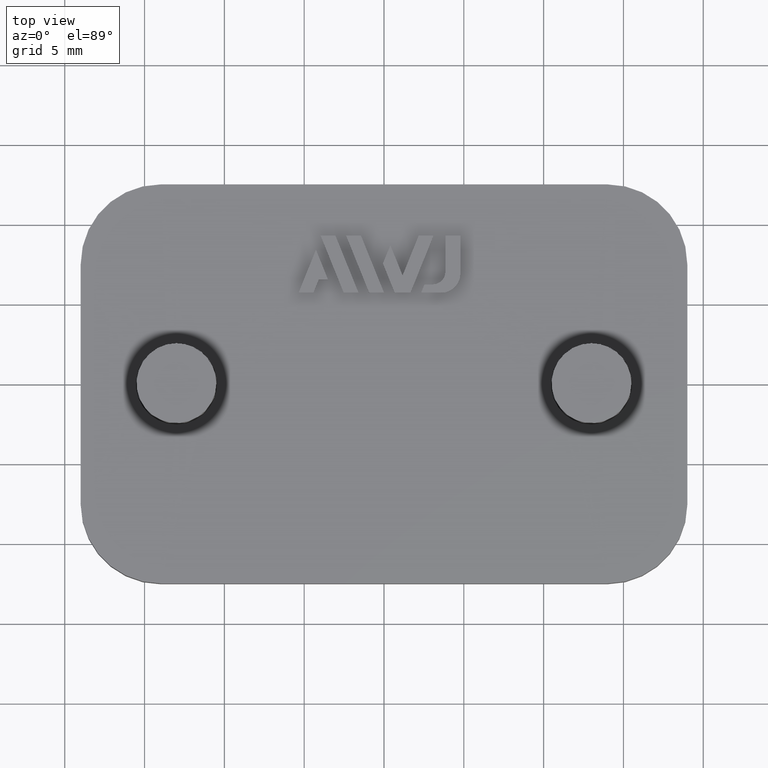
[diagram: clean part render]
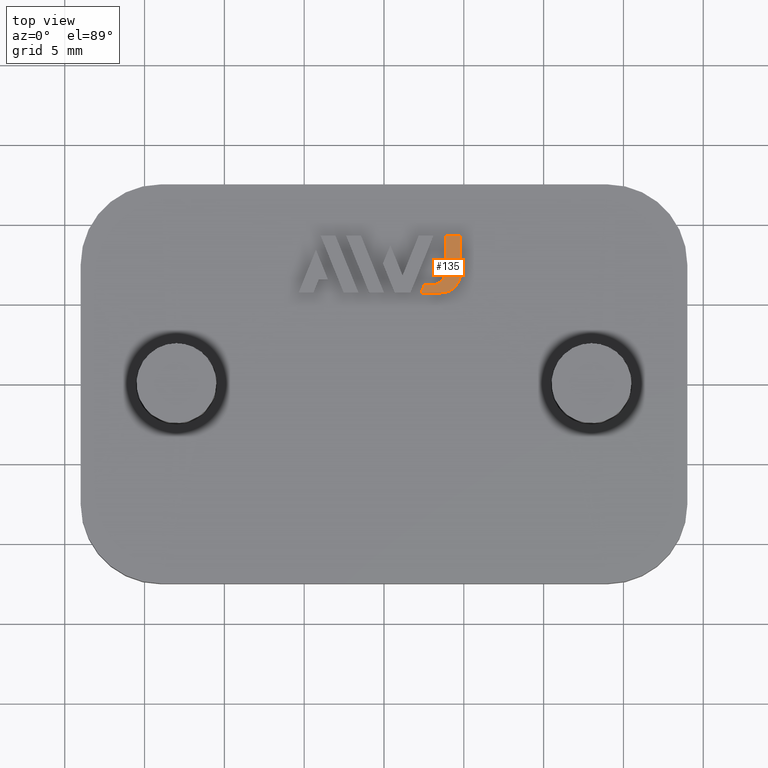
[diagram: same view with one face highlighted and labeled with its STEP entity id]
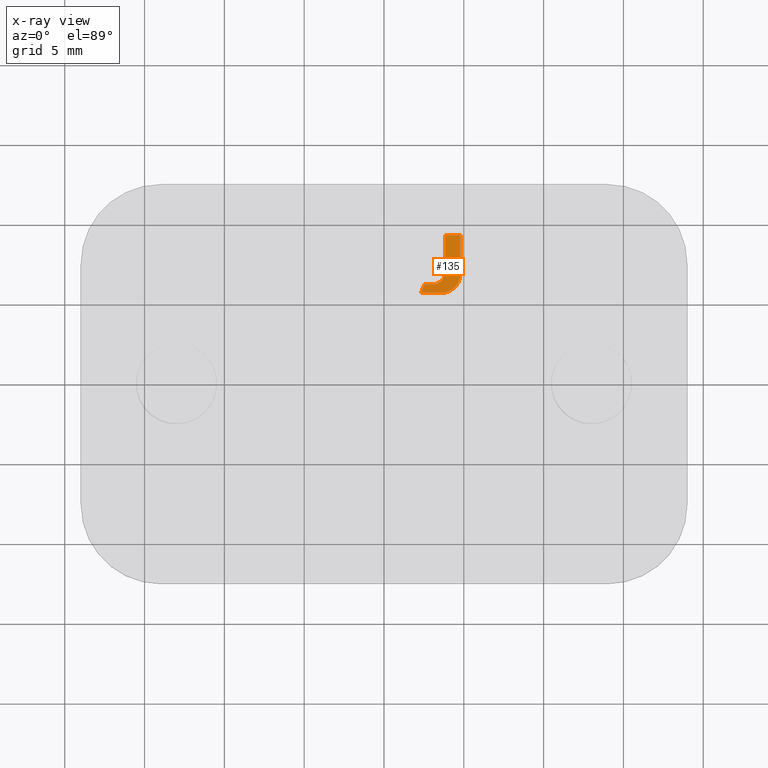
[diagram: x-ray of the same camera — body ghosted, the highlighted face saturated]
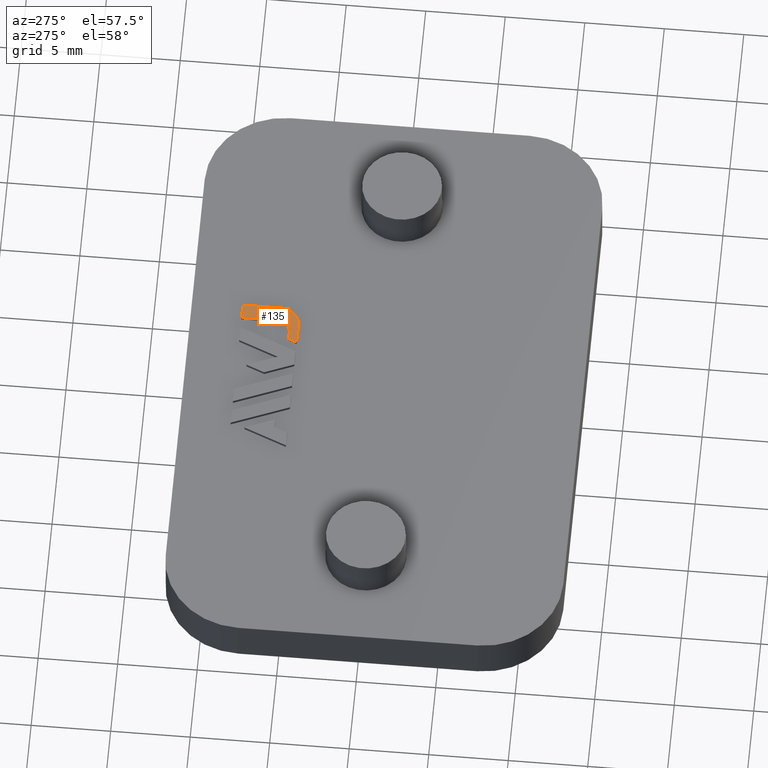
[diagram: same view with one face highlighted and labeled with its STEP entity id]
A machine part, top view. The second image highlights one B-rep face of the part: STEP entity #135.
The next image is the same camera in x-ray: the body ghosted, the highlighted face saturated — about 0% of this face is hidden behind the body in this view.
A second angle (auxiliary view) of the same face is appended — the face is thin or edge-on in the first view.
In plain terms, the highlighted planar face has unit normal (0, 0, 1).
Its self-contained STEP definition (entity closure, byte-faithful):
#135 = ADVANCED_FACE( '', ( #268 ), #269, .T. );
#268 = FACE_OUTER_BOUND( '', #401, .T. );
#269 = PLANE( '', #402 );
#401 = EDGE_LOOP( '', ( #871, #872, #873, #874, #875, #876, #877, #878 ) );
#402 = AXIS2_PLACEMENT_3D( '', #879, #880, #881 );
#871 = ORIENTED_EDGE( '', *, *, #1019, .T. );
#872 = ORIENTED_EDGE( '', *, *, #924, .T. );
#873 = ORIENTED_EDGE( '', *, *, #927, .T. );
#874 = ORIENTED_EDGE( '', *, *, #1022, .T. );
#875 = ORIENTED_EDGE( '', *, *, #1024, .T. );
#876 = ORIENTED_EDGE( '', *, *, #1026, .T. );
#877 = ORIENTED_EDGE( '', *, *, #1028, .T. );
#878 = ORIENTED_EDGE( '', *, *, #1029, .T. );
#879 = CARTESIAN_POINT( '', ( 3.58288028181883, 6.90000000000000, 3.19999999999999 ) );
#880 = DIRECTION( '', ( 0.000000000000000, 6.12303176911189E-017, 1.00000000000000 ) );
#881 = DIRECTION( '', ( 0.000000000000000, -1.00000000000000, 6.12303176911189E-017 ) );
#924 = EDGE_CURVE( '', #1113, #1111, #1114, .T. );
#927 = EDGE_CURVE( '', #1111, #1116, #1118, .T. );
#1019 = EDGE_CURVE( '', #1262, #1113, #1263, .T. );
#1022 = EDGE_CURVE( '', #1116, #1265, #1267, .T. );
#1024 = EDGE_CURVE( '', #1265, #1268, #1270, .T. );
#1026 = EDGE_CURVE( '', #1268, #1271, #1273, .T. );
#1028 = EDGE_CURVE( '', #1271, #1274, #1276, .T. );
#1029 = EDGE_CURVE( '', #1274, #1262, #1277, .T. );
#1111 = VERTEX_POINT( '', #1392 );
#1113 = VERTEX_POINT( '', #1395 );
#1114 = LINE( '', #1396, #1397 );
#1116 = VERTEX_POINT( '', #1400 );
#1118 = LINE( '', #1403, #1404 );
#1262 = VERTEX_POINT( '', #1633 );
#1263 = CIRCLE( '', #1634, 1.20000000000000 );
#1265 = VERTEX_POINT( '', #1637 );
#1267 = LINE( '', #1640, #1641 );
#1268 = VERTEX_POINT( '', #1642 );
#1270 = CIRCLE( '', #1645, 0.799999999999998 );
#1271 = VERTEX_POINT( '', #1646 );
#1273 = LINE( '', #1649, #1650 );
#1274 = VERTEX_POINT( '', #1651 );
#1276 = LINE( '', #1654, #1655 );
#1277 = LINE( '', #1656, #1657 );
#1392 = CARTESIAN_POINT( '', ( 4.78288028181883, 9.29736617046470, 3.19999999999999 ) );
#1395 = CARTESIAN_POINT( '', ( 4.78288028181883, 6.90000000000000, 3.19999999999999 ) );
#1396 = CARTESIAN_POINT( '', ( 4.78288028181883, 6.90000000000000, 3.19999999999999 ) );
#1397 = VECTOR( '', #1716, 1000.00000000000 );
#1400 = CARTESIAN_POINT( '', ( 3.84274195062396, 9.29736617046469, 3.19999999999999 ) );
#1403 = CARTESIAN_POINT( '', ( 4.78288028181883, 9.29736617046469, 3.19999999999999 ) );
#1404 = VECTOR( '', #1719, 1000.00000000000 );
#1633 = CARTESIAN_POINT( '', ( 3.58288028181883, 5.70000000000000, 3.19999999999999 ) );
#1634 = AXIS2_PLACEMENT_3D( '', #1823, #1824, #1825 );
#1637 = CARTESIAN_POINT( '', ( 3.84274195062396, 7.02312496744034, 3.19999999999999 ) );
#1640 = CARTESIAN_POINT( '', ( 3.84274195062396, 9.29736617046469, 3.19999999999999 ) );
#1641 = VECTOR( '', #1828, 1000.00000000000 );
#1642 = CARTESIAN_POINT( '', ( 3.04274195062396, 6.22312496744035, 3.19999999999999 ) );
#1645 = AXIS2_PLACEMENT_3D( '', #1830, #1831, #1832 );
#1646 = CARTESIAN_POINT( '', ( 2.53176335265060, 6.22312496744036, 3.19999999999999 ) );
#1649 = CARTESIAN_POINT( '', ( 3.04274195062396, 6.22312496744036, 3.19999999999999 ) );
#1650 = VECTOR( '', #1834, 1000.00000000000 );
#1651 = CARTESIAN_POINT( '', ( 2.32040714641553, 5.70000000000000, 3.19999999999999 ) );
#1654 = CARTESIAN_POINT( '', ( 2.53176335265060, 6.22312496744036, 3.19999999999999 ) );
#1655 = VECTOR( '', #1836, 1000.00000000000 );
#1656 = CARTESIAN_POINT( '', ( 2.32040714641553, 5.70000000000000, 3.19999999999999 ) );
#1657 = VECTOR( '', #1837, 1000.00000000000 );
#1716 = DIRECTION( '', ( 6.07153216591882E-017, 1.00000000000000, -2.44921270764475E-016 ) );
#1719 = DIRECTION( '', ( -1.00000000000000, 3.74915180455534E-033, 6.12303176911189E-017 ) );
#1823 = CARTESIAN_POINT( '', ( 3.58288028181883, 6.90000000000000, 3.19999999999999 ) );
#1824 = DIRECTION( '', ( -7.60253073092889E-048, 6.12303176911189E-017, 1.00000000000000 ) );
#1825 = DIRECTION( '', ( -7.22801448323669E-016, -1.00000000000000, 6.12303176911189E-017 ) );
#1828 = DIRECTION( '', ( -6.07153216591883E-017, -1.00000000000000, 2.44921270764475E-016 ) );
#1830 = CARTESIAN_POINT( '', ( 3.04274195062396, 7.02312496744035, 3.19999999999999 ) );
#1831 = DIRECTION( '', ( 0.000000000000000, -6.12303176911189E-017, -1.00000000000000 ) );
#1832 = DIRECTION( '', ( 1.00000000000000, 0.000000000000000, 0.000000000000000 ) );
#1834 = DIRECTION( '', ( -1.00000000000000, 1.55275924282542E-032, 6.12303176911189E-017 ) );
#1836 = DIRECTION( '', ( -0.374606593415912, -0.927183854566787, 2.50024328616846E-016 ) );
#1837 = DIRECTION( '', ( 1.00000000000000, 1.53198672737397E-032, -6.12303176911189E-017 ) );